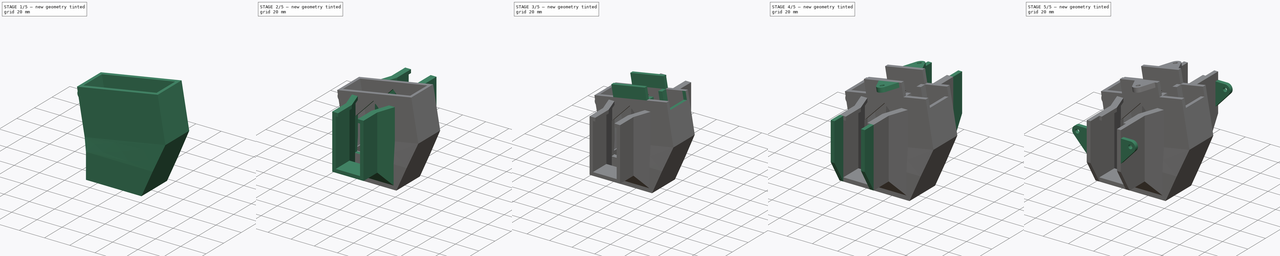
[diagram: build sequence overview — one tinted view per stage of 5, left to right]
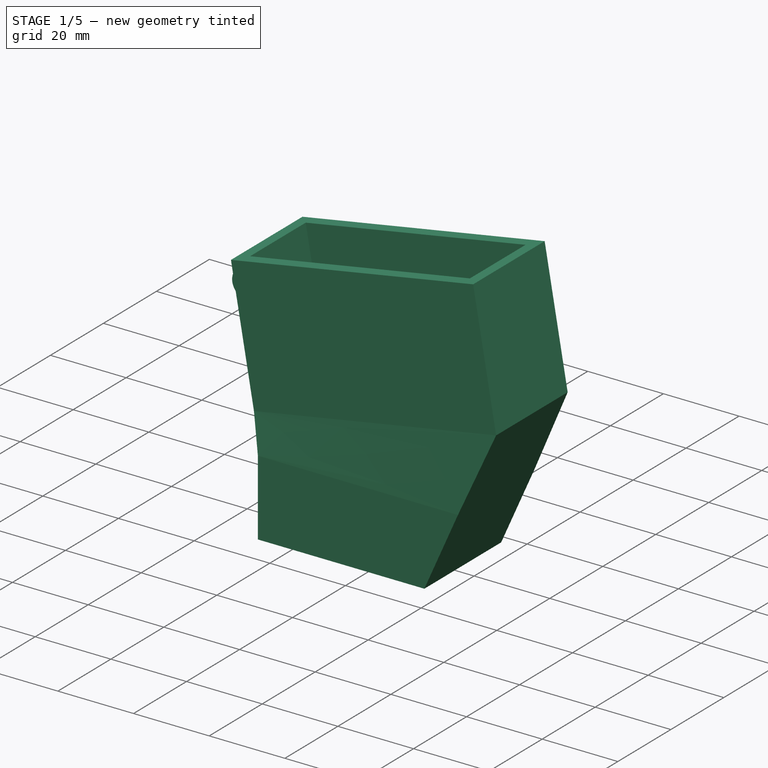
[diagram: stage 1 of 5 — iso view after this stage's code; geometry added in this stage tinted green]
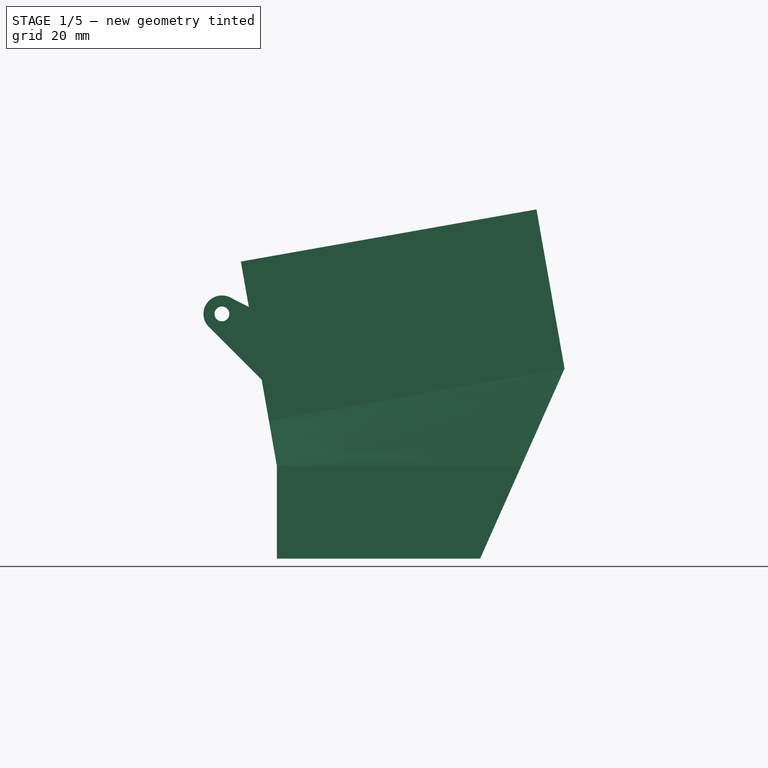
[diagram: stage 1 of 5 — front view after this stage's code; geometry added in this stage tinted green]
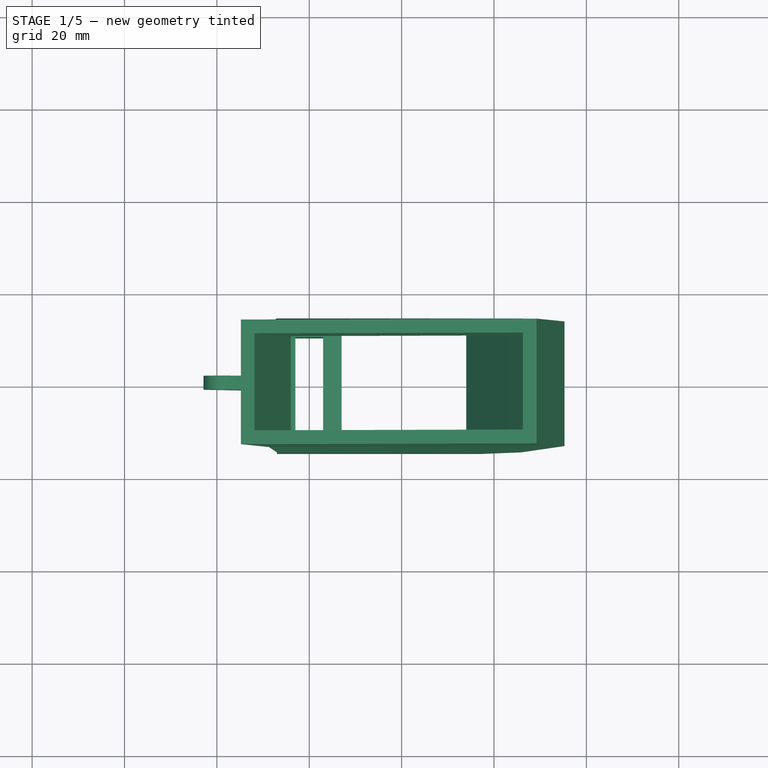
[diagram: stage 1 of 5 — top view after this stage's code; geometry added in this stage tinted green]
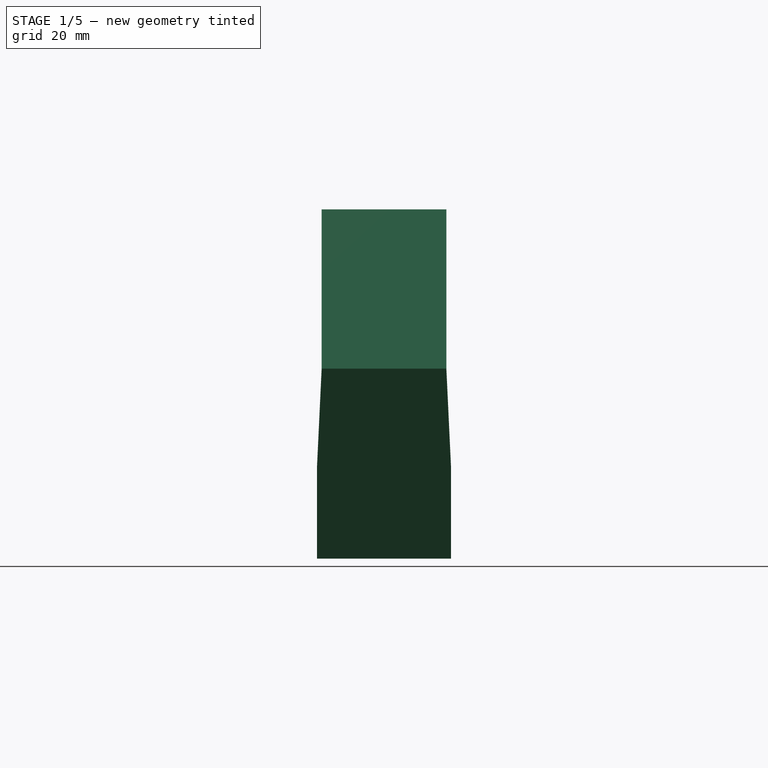
[diagram: stage 1 of 5 — right view after this stage's code; geometry added in this stage tinted green]
FCSTD DOCUMENT  (FreeCAD 0.21R33668 +7 (Git))
Label: 2_Chest_Main
License: All rights reserved
LicenseURL: http://en.wikipedia.org/wiki/All_rights_reserved
objects: Sketcher::SketchObject×19, PartDesign::Pad×6, PartDesign::Plane×4, PartDesign::Pocket×4, PartDesign::AdditiveLoft×3, PartDesign::Mirrored×3, PartDesign::LinearPattern×1, PartDesign::MultiTransform×1, PartDesign::Body×1
note: 55 computed .brp shape members not serialized (recipe doc carries the construction recipe); baked Part::Feature solids carry a one-line shape summary decoded from their .brp

FEATURE [Sketcher::SketchObject] Sketch  label="Master sketch"
  FullyConstrained = true
  MapMode = 5
  Placement = pos=(0,0,0) rot=(1,0,0;1.5708rad)
  Support = -> [XZ_Plane]
  sketch-geometry (9):
    g0: LineSegment StartX=-7 StartY=0 StartZ=0 EndX=37 EndY=0 EndZ=0
    g1: LineSegment StartX=-7 StartY=0 StartZ=0 EndX=-7 EndY=20 EndZ=0
    g2: LineSegment StartX=55.276 StartY=41.1352 StartZ=0 EndX=37 EndY=0 EndZ=0
    g3: LineSegment StartX=-7 StartY=20 StartZ=0 EndX=-14.8142 EndY=64.3163 EndZ=0
    g4: LineSegment StartX=-14.8142 StartY=64.3163 StartZ=0 EndX=49.1983 EndY=75.6035 EndZ=0
    g5: LineSegment StartX=49.1983 StartY=75.6035 StartZ=0 EndX=55.276 EndY=41.1352 EndZ=0
    g6: LineSegment StartX=55.276 StartY=41.1352 StartZ=0 EndX=-8.73648 EndY=29.8481 EndZ=0
    g7: LineSegment StartX=-7 StartY=20 StartZ=0 EndX=45.8858 EndY=20 EndZ=0
    g8: LineSegment StartX=28.5174 StartY=71.9569 StartZ=0 EndX=34.5951 EndY=37.4886 EndZ=0
  constraints (28):
    c: PointOnObject(g0,g-1)
    c: Horizontal(g0)
    c: DistanceX(g0,g0) = 44
    c: DistanceX(g0,g-1) = 7
    c: Coincident(g0,g1)
    c: Vertical(g1)
    c: Coincident(g2,g0)
    c: Coincident(g3,g1)
    c: Coincident(g4,g3)
    c: Distance(g4) = 65
    c: Angle(g-2,g3) = 0.174533
    c: Perpendicular(g3,g4)
    c: Coincident(g5,g4)
    c: Parallel(g5,g3)
    c: Distance(g5) = 35
    c: Coincident(g2,g5)
    c: Distance(g3) = 45
    c: DistanceY(g1,g1) = 20
    c: Coincident(g6,g2)
    c: PointOnObject(g6,g3)
    c: Parallel(g6,g4)
    c: Coincident(g7,g1)
    c: PointOnObject(g7,g2)
    c: Horizontal(g7)
    c: PointOnObject(g8,g4)
    c: PointOnObject(g8,g6)
    c: Parallel(g8,g5)
    c: Distance(g8,g3) = 44
FEATURE [PartDesign::Plane] DatumPlane
  Length = 99.07
  MapMode = 7
  Placement = pos=(-7,-4.4e-15,20) rot=(0,1,0;3.14159rad)
  ResizeMode = 0
  Support = -> [Sketch]
  Width = 128.794
FEATURE [PartDesign::Plane] DatumPlane001
  Length = 130.733
  MapMode = 7
  Placement = pos=(-8.73648,-6.6e-15,29.8481) rot=(0.705758,0.705758,0.061746;3.01826rad)
  ResizeMode = 0
  Support = -> [Sketch]
  Width = 118.426
FEATURE [PartDesign::Plane] DatumPlane002
  Length = 130.733
  MapMode = 7
  Placement = pos=(-14.8142,-1.43e-14,64.3163) rot=(0.705758,0.705758,0.061746;3.01826rad)
  ResizeMode = 0
  Support = -> [Sketch]
  Width = 118.426
FEATURE [Sketcher::SketchObject] Sketch001
  ExternalGeometry = -> [Sketch]
  FullyConstrained = true
  MapMode = 5
  Support = -> [XY_Plane]
  sketch-geometry (12):
    g0: LineSegment StartX=-7 StartY=-14.5 StartZ=0 EndX=37 EndY=-14.5 EndZ=0
    g1: LineSegment StartX=37 StartY=-14.5 StartZ=0 EndX=37 EndY=14.5 EndZ=0
    g2: LineSegment StartX=37 StartY=14.5 StartZ=0 EndX=-7 EndY=14.5 EndZ=0
    g3: LineSegment StartX=-7 StartY=14.5 StartZ=0 EndX=-7 EndY=-14.5 EndZ=0
    g4: LineSegment StartX=-3 StartY=-10.5 StartZ=0 EndX=3 EndY=-10.5 EndZ=0
    g5: LineSegment StartX=3 StartY=-10.5 StartZ=0 EndX=3 EndY=10.5 EndZ=0
    g6: LineSegment StartX=3 StartY=10.5 StartZ=0 EndX=-3 EndY=10.5 EndZ=0
    g7: LineSegment StartX=-3 StartY=10.5 StartZ=0 EndX=-3 EndY=-10.5 EndZ=0
    g8: LineSegment StartX=7 StartY=11.5 StartZ=0 EndX=34 EndY=11.5 EndZ=0
    g9: LineSegment StartX=34 StartY=11.5 StartZ=0 EndX=34 EndY=-11.5 EndZ=0
    g10: LineSegment StartX=34 StartY=-11.5 StartZ=0 EndX=7 EndY=-11.5 EndZ=0
    g11: LineSegment StartX=7 StartY=-11.5 StartZ=0 EndX=7 EndY=11.5 EndZ=0
  constraints (33):
    c: Coincident(g0,g1)
    c: Coincident(g1,g2)
    c: Coincident(g2,g3)
    c: Coincident(g3,g0)
    c: Vertical(g1)
    c: Symmetric(g2,g0,g-1)
    c: PointOnObject(g-3,g3)
    c: PointOnObject(g-3,g1)
    c: Coincident(g4,g5)
    c: Coincident(g5,g6)
    c: Coincident(g6,g7)
    c: Coincident(g7,g4)
    c: Horizontal(g4)
    c: Horizontal(g6)
    c: Vertical(g5)
    c: Vertical(g7)
    c: Coincident(g8,g9)
    c: Coincident(g9,g10)
    c: Coincident(g10,g11)
    c: Coincident(g11,g8)
    c: Horizontal(g8)
    c: Horizontal(g10)
    c: Vertical(g9)
    c: Symmetric(g5,g4,g-1)
    c: Symmetric(g10,g8,g-3)
    c: DistanceX(g2,g6) = 4
    c: DistanceY(g6,g2) = 4
    c: DistanceY(g7,g7) = 21
    c: DistanceX(g8,g1) = 3
    c: DistanceX(g5,g8) = 4
    c: DistanceY(g8,g1) = 3
    c: Horizontal(g2)
    c: Horizontal(g0)
FEATURE [Sketcher::SketchObject] Sketch002
  ExternalGeometry = -> [Sketch]
  FullyConstrained = true
  MapMode = 5
  Placement = pos=(-7,-4.4e-15,20) rot=(0,1,0;3.14159rad)
  Support = -> [DatumPlane]
  sketch-geometry (12):
    g0: LineSegment StartX=-52.8858 StartY=14.5 StartZ=0 EndX=0 EndY=14.5 EndZ=0
    g1: LineSegment StartX=0 StartY=14.5 StartZ=0 EndX=0 EndY=-14.5 EndZ=0
    g2: LineSegment StartX=0 StartY=-14.5 StartZ=0 EndX=-52.8858 EndY=-14.5 EndZ=0
    g3: LineSegment StartX=-52.8858 StartY=-14.5 StartZ=0 EndX=-52.8858 EndY=14.5 EndZ=0
    g4: LineSegment StartX=-10 StartY=10.5 StartZ=0 EndX=-4 EndY=10.5 EndZ=0
    g5: LineSegment StartX=-4 StartY=10.5 StartZ=0 EndX=-4 EndY=-10.5 EndZ=0
    g6: LineSegment StartX=-4 StartY=-10.5 StartZ=0 EndX=-10 EndY=-10.5 EndZ=0
    g7: LineSegment StartX=-10 StartY=-10.5 StartZ=0 EndX=-10 EndY=10.5 EndZ=0
    g8: LineSegment StartX=-49.8858 StartY=-11.5 StartZ=0 EndX=-14 EndY=-11.5 EndZ=0
    g9: LineSegment StartX=-14 StartY=-11.5 StartZ=0 EndX=-14 EndY=11.5 EndZ=0
    g10: LineSegment StartX=-14 StartY=11.5 StartZ=0 EndX=-49.8858 EndY=11.5 EndZ=0
    g11: LineSegment StartX=-49.8858 StartY=11.5 StartZ=0 EndX=-49.8858 EndY=-11.5 EndZ=0
  constraints (33):
    c: Coincident(g0,g1)
    c: Coincident(g1,g2)
    c: Coincident(g2,g3)
    c: Coincident(g3,g0)
    c: Horizontal(g0)
    c: Horizontal(g2)
    c: Vertical(g1)
    c: Vertical(g3)
    c: PointOnObject(g-3,g1)
    c: Symmetric(g0,g2,g-3)
    c: Coincident(g4,g5)
    c: Coincident(g5,g6)
    c: Coincident(g6,g7)
    c: Coincident(g7,g4)
    c: Horizontal(g4)
    c: Horizontal(g6)
    c: Vertical(g5)
    c: Symmetric(g4,g6,g-3)
    c: DistanceX(g4,g0) = 4
    c: DistanceX(g4,g4) = 6
    c: DistanceY(g4,g0) = 4
    c: DistanceY(g5,g5) = 21
    c: Coincident(g8,g9)
    c: Coincident(g9,g10)
    c: Coincident(g10,g11)
    c: Coincident(g11,g8)
    c: Horizontal(g8)
    c: Horizontal(g10)
    c: Vertical(g9)
    c: Symmetric(g10,g8,g-3)
    c: DistanceX(g2,g8) = 3
    c: DistanceY(g2,g8) = 3
    c: DistanceX(g8,g6) = 4
FEATURE [PartDesign::AdditiveLoft] AdditiveLoft
  Closed = false
  Profile = -> Sketch001
  Ruled = true
  Sections = -> [Sketch002]
FEATURE [Sketcher::SketchObject] Sketch003
  ExternalGeometry = -> [AdditiveLoft]
  FullyConstrained = true
  MapMode = 5
  Placement = pos=(-7,-4.4e-15,20) rot=(0,1,0;3.14159rad)
  Support = -> [DatumPlane]
  sketch-geometry (8):
    g0: LineSegment StartX=-52.8858 StartY=14.5 StartZ=0 EndX=0 EndY=14.5 EndZ=0
    g1: LineSegment StartX=0 StartY=14.5 StartZ=0 EndX=0 EndY=-14.5 EndZ=0
    g2: LineSegment StartX=0 StartY=-14.5 StartZ=0 EndX=-52.8858 EndY=-14.5 EndZ=0
    g3: LineSegment StartX=-52.8858 StartY=-14.5 StartZ=0 EndX=-52.8858 EndY=14.5 EndZ=0
    g4: LineSegment StartX=-49.8858 StartY=-11.5 StartZ=0 EndX=-3 EndY=-11.5 EndZ=0
    g5: LineSegment StartX=-3 StartY=-11.5 StartZ=0 EndX=-3 EndY=11.5 EndZ=0
    g6: LineSegment StartX=-3 StartY=11.5 StartZ=0 EndX=-49.8858 EndY=11.5 EndZ=0
    g7: LineSegment StartX=-49.8858 StartY=11.5 StartZ=0 EndX=-49.8858 EndY=-11.5 EndZ=0
  constraints (21):
    c: Coincident(g0,g1)
    c: Coincident(g1,g2)
    c: Coincident(g2,g3)
    c: Coincident(g3,g0)
    c: Horizontal(g0)
    c: Horizontal(g2)
    c: Vertical(g1)
    c: PointOnObject(g-1,g1)
    c: Coincident(g0,g-3)
    c: Coincident(g2,g-3)
    c: Coincident(g4,g5)
    c: Coincident(g5,g6)
    c: Coincident(g6,g7)
    c: Coincident(g7,g4)
    c: Horizontal(g4)
    c: Horizontal(g6)
    c: Vertical(g5)
    c: DistanceX(g0,g6) = 3
    c: DistanceY(g6,g0) = 3
    c: DistanceX(g5,g0) = 3
    c: Symmetric(g6,g4,g-1)
FEATURE [Sketcher::SketchObject] Sketch004
  ExternalGeometry = -> [Sketch]
  FullyConstrained = true
  MapMode = 5
  Placement = pos=(-8.73648,-6.6e-15,29.8481) rot=(0.705758,0.705758,0.061746;3.01826rad)
  Support = -> [DatumPlane001]
  sketch-geometry (8):
    g0: LineSegment StartX=-13.5 StartY=0 StartZ=0 EndX=13.5 EndY=0 EndZ=0
    g1: LineSegment StartX=13.5 StartY=0 StartZ=0 EndX=13.5 EndY=65 EndZ=0
    g2: LineSegment StartX=13.5 StartY=65 StartZ=0 EndX=-13.5 EndY=65 EndZ=0
    g3: LineSegment StartX=-13.5 StartY=65 StartZ=0 EndX=-13.5 EndY=0 EndZ=0
    g4: LineSegment StartX=-10.5 StartY=3 StartZ=0 EndX=10.5 EndY=3 EndZ=0
    g5: LineSegment StartX=10.5 StartY=3 StartZ=0 EndX=10.5 EndY=62 EndZ=0
    g6: LineSegment StartX=10.5 StartY=62 StartZ=0 EndX=-10.5 EndY=62 EndZ=0
    g7: LineSegment StartX=-10.5 StartY=62 StartZ=0 EndX=-10.5 EndY=3 EndZ=0
  constraints (22):
    c: Coincident(g0,g1)
    c: Coincident(g1,g2)
    c: Coincident(g2,g3)
    c: Coincident(g3,g0)
    c: Horizontal(g0)
    c: Horizontal(g2)
    c: Vertical(g1)
    c: Vertical(g3)
    c: Symmetric(g1,g2,g-3)
    c: PointOnObject(g-3,g0)
    c: Coincident(g4,g5)
    c: Coincident(g5,g6)
    c: Coincident(g6,g7)
    c: Coincident(g7,g4)
    c: Horizontal(g4)
    c: Vertical(g5)
    c: Vertical(g7)
    c: Symmetric(g5,g6,g-2)
    c: DistanceY(g5,g1) = 3
    c: DistanceX(g5,g1) = 3
    c: DistanceY(g0,g4) = 3
    c: DistanceX(g4,g4) = 21
FEATURE [Sketcher::SketchObject] Sketch005
  ExternalGeometry = -> [Sketch]
  FullyConstrained = true
  MapMode = 5
  Placement = pos=(-14.8142,-1.43e-14,64.3163) rot=(0.705758,0.705758,0.061746;3.01826rad)
  Support = -> [DatumPlane002]
  sketch-geometry (8):
    g0: LineSegment StartX=-13.5 StartY=0 StartZ=0 EndX=13.5 EndY=0 EndZ=0
    g1: LineSegment StartX=13.5 StartY=0 StartZ=0 EndX=13.5 EndY=65 EndZ=0
    g2: LineSegment StartX=13.5 StartY=65 StartZ=0 EndX=-13.5 EndY=65 EndZ=0
    g3: LineSegment StartX=-13.5 StartY=65 StartZ=0 EndX=-13.5 EndY=0 EndZ=0
    g4: LineSegment StartX=-10.5 StartY=3 StartZ=0 EndX=10.5 EndY=3 EndZ=0
    g5: LineSegment StartX=10.5 StartY=3 StartZ=0 EndX=10.5 EndY=62 EndZ=0
    g6: LineSegment StartX=10.5 StartY=62 StartZ=0 EndX=-10.5 EndY=62 EndZ=0
    g7: LineSegment StartX=-10.5 StartY=62 StartZ=0 EndX=-10.5 EndY=3 EndZ=0
  constraints (22):
    c: Coincident(g0,g1)
    c: Coincident(g1,g2)
    c: Coincident(g2,g3)
    c: Coincident(g3,g0)
    c: Horizontal(g0)
    c: Horizontal(g2)
    c: Vertical(g1)
    c: Vertical(g3)
    c: Symmetric(g1,g2,g-3)
    c: PointOnObject(g-3,g0)
    c: Coincident(g4,g5)
    c: Coincident(g5,g6)
    c: Coincident(g6,g7)
    c: Coincident(g7,g4)
    c: Horizontal(g4)
    c: Vertical(g5)
    c: Vertical(g7)
    c: Symmetric(g5,g6,g-3)
    c: DistanceY(g5,g1) = 3
    c: DistanceX(g5,g1) = 3
    c: DistanceY(g0,g4) = 3
    c: DistanceX(g4,g4) = 21
FEATURE [PartDesign::AdditiveLoft] AdditiveLoft001
  BaseFeature = -> AdditiveLoft
  Closed = false
  Profile = -> Sketch003
  Ruled = true
  Sections = -> [Sketch004,Sketch005]
FEATURE [Sketcher::SketchObject] Sketch006  label="Camera bracket sketch"
  ExternalGeometry = -> [Sketch]
  FullyConstrained = true
  MapMode = 5
  Placement = pos=(0,0,0) rot=(1,0,0;1.5708rad)
  Support = -> [XZ_Plane]
  sketch-geometry (6):
    g0: LineSegment StartX=-13.0777 StartY=54.4683 StartZ=0 EndX=-10.2993 EndY=38.7113 EndZ=0
    g1: LineSegment StartX=-10.2993 StartY=38.7113 StartZ=0 EndX=-21.7355 EndY=50.1476 EndZ=0
    g2: LineSegment StartX=-13.0777 StartY=54.4683 StartZ=0 EndX=-17.0723 EndY=56.5304 EndZ=0
    g3: ArcOfCircle CenterX=-18.9071 CenterY=52.976 CenterZ=0 NormalX=0 NormalY=0 NormalZ=1 AngleXU=0 Radius=4 StartAngle=1.09426 EndAngle=3.92699
    g4: LineSegment StartX=-18.9071 StartY=52.976 StartZ=0 EndX=-12.9983 EndY=54.0179 EndZ=0
    g5: Circle CenterX=-18.9071 CenterY=52.976 CenterZ=0 NormalX=0 NormalY=0 NormalZ=1 AngleXU=0 Radius=1.6
  constraints (16):
    c: Tangent(g3,g2) = -1.5708
    c: Tangent(g3,g1) = 1.5708
    c: Radius(g3) = 4
    c: PointOnObject(g1,g-3)
    c: Distance(g0) = 16
    c: Angle(g1,g-2) = 2.35619
    c: PointOnObject(g4,g0)
    c: Perpendicular(g0,g4)
    c: Distance(g4) = 6
    c: Coincident(g0,g1)
    c: Coincident(g0,g2)
    c: PointOnObject(g0,g-3)
    c: Coincident(g3,g4)
    c: Distance(g0,g-3) = 10
    c: Diameter(g5) = 3.2
    c: Coincident(g5,g3)
FEATURE [PartDesign::Pad] Pad  label="Camera bracket"
  BaseFeature = -> AdditiveLoft001
  Direction = (0,-1,-2e-16)
  Length = 3
  Length2 = 10
  Midplane = true
  Profile = -> Sketch006
  ReferenceAxis = -> Sketch006 [N_Axis]
  Type = 0
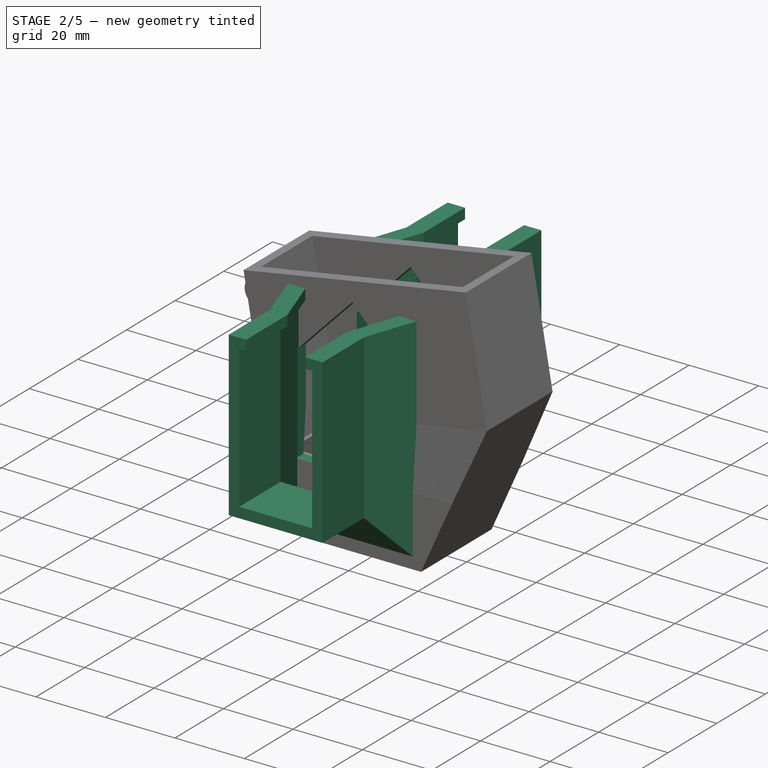
[diagram: stage 2 of 5 — iso view after this stage's code; geometry added in this stage tinted green]
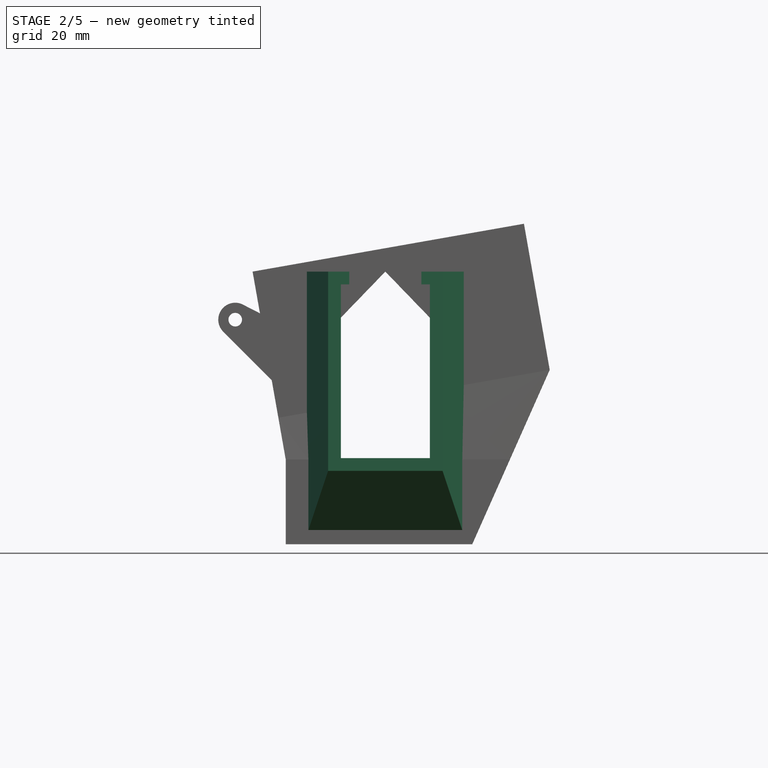
[diagram: stage 2 of 5 — front view after this stage's code; geometry added in this stage tinted green]
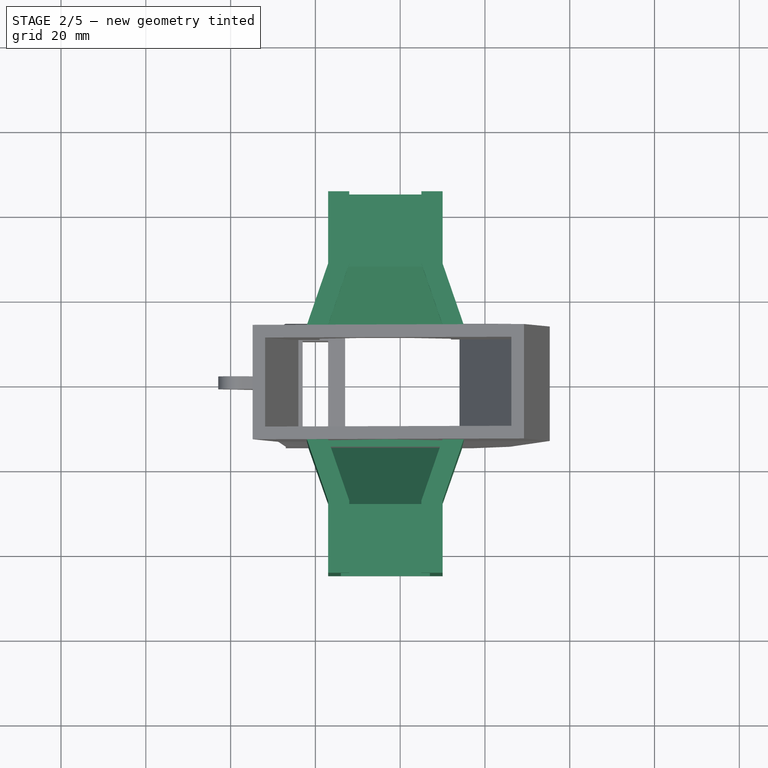
[diagram: stage 2 of 5 — top view after this stage's code; geometry added in this stage tinted green]
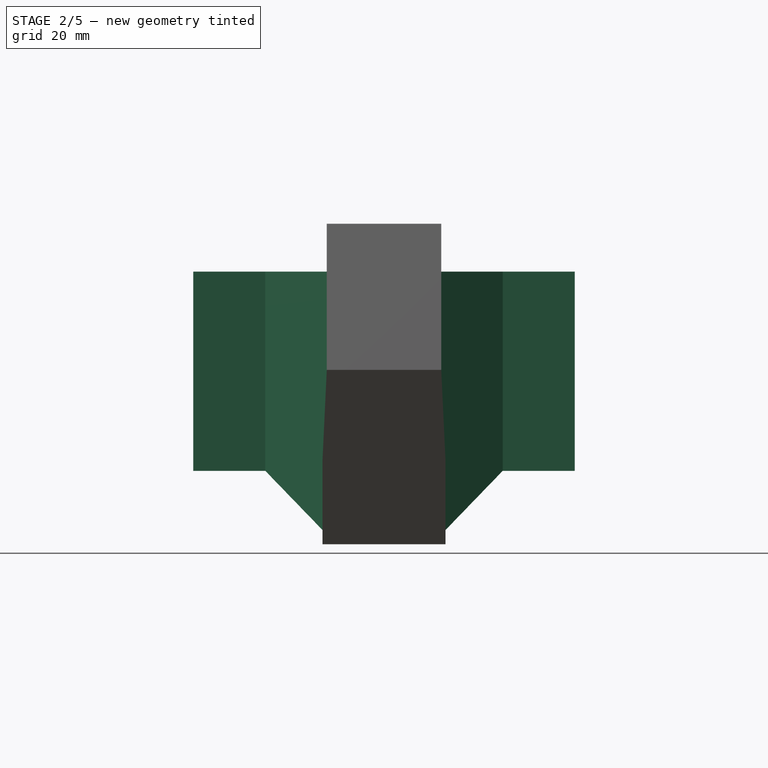
[diagram: stage 2 of 5 — right view after this stage's code; geometry added in this stage tinted green]
FEATURE [Sketcher::SketchObject] Sketch007
  AttachmentOffset = pos=(0,0,13.5) rot=(0,0,1;0rad)
  ExternalGeometry = -> [Sketch]
  FullyConstrained = true
  MapMode = 5
  Placement = pos=(0,-13.5,-3e-15) rot=(1,0,0;1.5708rad)
  Support = -> [XZ_Plane]
  sketch-geometry (12):
    g0: LineSegment StartX=35 StartY=64.3163 StartZ=0 EndX=35 EndY=2.31635 EndZ=0
    g1: LineSegment StartX=35 StartY=2.31635 StartZ=0 EndX=-2 EndY=2.31635 EndZ=0
    g2: LineSegment StartX=-2 StartY=2.31635 StartZ=0 EndX=-2 EndY=64.3163 EndZ=0
    g3: LineSegment StartX=32 StartY=61.3163 StartZ=0 EndX=32 EndY=5.31635 EndZ=0
    g4: LineSegment StartX=32 StartY=5.31635 StartZ=0 EndX=1 EndY=5.31635 EndZ=0
    g5: LineSegment StartX=1 StartY=5.31635 StartZ=0 EndX=1 EndY=61.3163 EndZ=0
    g6: LineSegment StartX=-2 StartY=64.3163 StartZ=0 EndX=3 EndY=64.3163 EndZ=0
    g7: LineSegment StartX=3 StartY=64.3163 StartZ=0 EndX=3 EndY=61.3163 EndZ=0
    g8: LineSegment StartX=3 StartY=61.3163 StartZ=0 EndX=1 EndY=61.3163 EndZ=0
    g9: LineSegment StartX=35 StartY=64.3163 StartZ=0 EndX=30 EndY=64.3163 EndZ=0
    g10: LineSegment StartX=30 StartY=64.3163 StartZ=0 EndX=30 EndY=61.3163 EndZ=0
    g11: LineSegment StartX=30 StartY=61.3163 StartZ=0 EndX=32 EndY=61.3163 EndZ=0
  constraints (36):
    c: Coincident(g0,g1)
    c: Coincident(g1,g2)
    c: Horizontal(g1)
    c: Vertical(g0)
    c: Vertical(g2)
    c: Horizontal(g-3,g2)
    c: Coincident(g3,g4)
    c: Coincident(g4,g5)
    c: Horizontal(g4)
    c: Vertical(g3)
    c: Vertical(g5)
    c: DistanceY(g5,g2) = 3
    c: DistanceX(g2,g5) = 3
    c: DistanceY(g0,g3) = 3
    c: DistanceX(g3,g0) = 3
    c: DistanceX(g5,g3) = 31
    c: DistanceX(g-3,g1) = 5
    c: DistanceY(g5,g5) = 56
    c: Coincident(g2,g6)
    c: Horizontal(g6)
    c: Coincident(g6,g7)
    c: Vertical(g7)
    c: Coincident(g7,g8)
    c: Coincident(g8,g5)
    c: Coincident(g0,g9)
    c: Coincident(g9,g10)
    c: Coincident(g10,g11)
    c: Coincident(g11,g3)
    c: DistanceX(g6,g6) = 5
    c: DistanceY(g7,g7) = 3
    c: Vertical(g10)
    c: Horizontal(g11)
    c: Horizontal(g10,g7)
    c: Horizontal(g9,g6)
    c: DistanceX(g9,g9) = 5
    c: Horizontal(g9)
FEATURE [Sketcher::SketchObject] Sketch008
  AttachmentOffset = pos=(0,0,28) rot=(0,0,1;0rad)
  ExternalGeometry = -> [Sketch007]
  FullyConstrained = true
  MapMode = 5
  Placement = pos=(0,-28,-6.2e-15) rot=(1,0,0;1.5708rad)
  Support = -> [XZ_Plane]
  sketch-geometry (12):
    g0: LineSegment StartX=30 StartY=64.3163 StartZ=0 EndX=30 EndY=17.3163 EndZ=0
    g1: LineSegment StartX=30 StartY=17.3163 StartZ=0 EndX=3 EndY=17.3163 EndZ=0
    g2: LineSegment StartX=3 StartY=17.3163 StartZ=0 EndX=3 EndY=64.3163 EndZ=0
    g3: LineSegment StartX=27 StartY=61.3163 StartZ=0 EndX=27 EndY=20.3163 EndZ=0
    g4: LineSegment StartX=27 StartY=20.3163 StartZ=0 EndX=6 EndY=20.3163 EndZ=0
    g5: LineSegment StartX=6 StartY=20.3163 StartZ=0 EndX=6 EndY=61.3163 EndZ=0
    g6: LineSegment StartX=3 StartY=64.3163 StartZ=0 EndX=8 EndY=64.3163 EndZ=0
    g7: LineSegment StartX=8 StartY=64.3163 StartZ=0 EndX=8 EndY=61.3163 EndZ=0
    g8: LineSegment StartX=6 StartY=61.3163 StartZ=0 EndX=8 EndY=61.3163 EndZ=0
    g9: LineSegment StartX=30 StartY=64.3163 StartZ=0 EndX=25 EndY=64.3163 EndZ=0
    g10: LineSegment StartX=25 StartY=64.3163 StartZ=0 EndX=25 EndY=61.3163 EndZ=0
    g11: LineSegment StartX=25 StartY=61.3163 StartZ=0 EndX=27 EndY=61.3163 EndZ=0
  constraints (37):
    c: Coincident(g0,g1)
    c: Coincident(g1,g2)
    c: Horizontal(g1)
    c: Vertical(g0)
    c: Vertical(g2)
    c: Coincident(g3,g4)
    c: Coincident(g4,g5)
    c: Horizontal(g4)
    c: Vertical(g3)
    c: Vertical(g5)
    c: DistanceX(g2,g5) = 3
    c: DistanceY(g0,g3) = 3
    c: DistanceX(g3,g0) = 3
    c: DistanceY(g5,g2) = 3
    c: DistanceX(g5,g3) = 21
    c: DistanceY(g5,g5) = 41
    c: DistanceY(g-4,g1) = -47
    c: Coincident(g2,g6)
    c: Horizontal(g6)
    c: Coincident(g6,g7)
    c: Vertical(g7)
    c: Coincident(g5,g8)
    c: Coincident(g8,g7)
    c: Horizontal(g8)
    c: Coincident(g0,g9)
    c: Coincident(g9,g10)
    c: Vertical(g10)
    c: Coincident(g10,g11)
    c: Horizontal(g2,g-4)
    c: Horizontal(g9)
    c: Horizontal(g9,g6)
    c: Horizontal(g7,g10)
    c: Horizontal(g11)
    c: Coincident(g3,g11)
    c: DistanceX(g-4,g2) = 5
    c: DistanceX(g6,g6) = 5
    c: DistanceX(g9,g9) = 5
FEATURE [Sketcher::SketchObject] Sketch009
  AttachmentOffset = pos=(0,0,45) rot=(0,0,1;0rad)
  ExternalGeometry = -> [Sketch008]
  FullyConstrained = true
  MapMode = 5
  Placement = pos=(0,-45,-1e-14) rot=(1,0,0;1.5708rad)
  Support = -> [XZ_Plane]
  sketch-geometry (12):
    g0: LineSegment StartX=8 StartY=64.3163 StartZ=0 EndX=3 EndY=64.3163 EndZ=0
    g1: LineSegment StartX=3 StartY=64.3163 StartZ=0 EndX=3 EndY=17.3163 EndZ=0
    g2: LineSegment StartX=3 StartY=17.3163 StartZ=0 EndX=30 EndY=17.3163 EndZ=0
    g3: LineSegment StartX=30 StartY=17.3163 StartZ=0 EndX=30 EndY=64.3163 EndZ=0
    g4: LineSegment StartX=30 StartY=64.3163 StartZ=0 EndX=25 EndY=64.3163 EndZ=0
    g5: LineSegment StartX=25 StartY=64.3163 StartZ=0 EndX=25 EndY=61.3163 EndZ=0
    g6: LineSegment StartX=25 StartY=61.3163 StartZ=0 EndX=27 EndY=61.3163 EndZ=0
    g7: LineSegment StartX=27 StartY=61.3163 StartZ=0 EndX=27 EndY=20.3163 EndZ=0
    g8: LineSegment StartX=27 StartY=20.3163 StartZ=0 EndX=6 EndY=20.3163 EndZ=0
    g9: LineSegment StartX=6 StartY=20.3163 StartZ=0 EndX=6 EndY=61.3163 EndZ=0
    g10: LineSegment StartX=6 StartY=61.3163 StartZ=0 EndX=8 EndY=61.3163 EndZ=0
    g11: LineSegment StartX=8 StartY=61.3163 StartZ=0 EndX=8 EndY=64.3163 EndZ=0
  constraints (28):
    c: Coincident(g0,g1)
    c: Coincident(g1,g2)
    c: Horizontal(g2)
    c: Coincident(g2,g3)
    c: Vertical(g3)
    c: Coincident(g3,g4)
    c: Coincident(g4,g5)
    c: Vertical(g5)
    c: Coincident(g5,g6)
    c: Horizontal(g6)
    c: Coincident(g6,g7)
    c: Vertical(g7)
    c: Coincident(g7,g8)
    c: Horizontal(g8)
    c: Coincident(g8,g9)
    c: Coincident(g9,g10)
    c: Horizontal(g10)
    c: Coincident(g10,g11)
    c: Coincident(g11,g0)
    c: Coincident(g0,g-4)
    c: Coincident(g8,g-7)
    c: Coincident(g9,g-7)
    c: Coincident(g0,g-4)
    c: Vertical(g11)
    c: Coincident(g1,g-3)
    c: Coincident(g4,g-5)
    c: Coincident(g6,g-8)
    c: Coincident(g3,g-6)
FEATURE [PartDesign::AdditiveLoft] AdditiveLoft002
  BaseFeature = -> Pad
  Closed = false
  Profile = -> Sketch007
  Ruled = true
  Sections = -> [Sketch008,Sketch009]
FEATURE [PartDesign::Mirrored] Mirrored001
  BaseFeature = -> AdditiveLoft002
  MirrorPlane = -> XZ_Plane
  Originals = -> [AdditiveLoft002]
FEATURE [Sketcher::SketchObject] Sketch010
  ExternalGeometry = -> [Sketch007]
  FullyConstrained = true
  MapMode = 5
  Placement = pos=(0,0,0) rot=(1,0,0;1.5708rad)
  Support = -> [XZ_Plane]
  sketch-geometry (5):
    g0: LineSegment StartX=1 StartY=20 StartZ=0 EndX=32 EndY=20 EndZ=0
    g1: LineSegment StartX=32 StartY=20 StartZ=0 EndX=32 EndY=48.2656 EndZ=0
    g2: LineSegment StartX=32 StartY=48.2656 StartZ=0 EndX=16.5 EndY=64.3163 EndZ=0
    g3: LineSegment StartX=16.5 StartY=64.3163 StartZ=0 EndX=1 EndY=48.2656 EndZ=0
    g4: LineSegment StartX=1 StartY=48.2656 StartZ=0 EndX=1 EndY=20 EndZ=0
  constraints (14):
    c: Horizontal(g0)
    c: Coincident(g0,g1)
    c: Vertical(g1)
    c: Coincident(g1,g2)
    c: Coincident(g2,g3)
    c: Coincident(g3,g4)
    c: Coincident(g4,g0)
    c: PointOnObject(g0,g-4)
    c: Vertical(g4)
    c: Symmetric(g-3,g-6,g2)
    c: PointOnObject(g1,g-5)
    c: Horizontal(g1,g3)
    c: Angle(g-2,g3) = 2.37365
    c: DistanceY(g-1,g0) = 20
FEATURE [PartDesign::Pocket] Pocket
  BaseFeature = -> Mirrored001
  Direction = (0,1,2e-16)
  Length = 29
  Length2 = 5
  Midplane = true
  Profile = -> Sketch010
  ReferenceAxis = -> Sketch010 [N_Axis]
  Type = 0
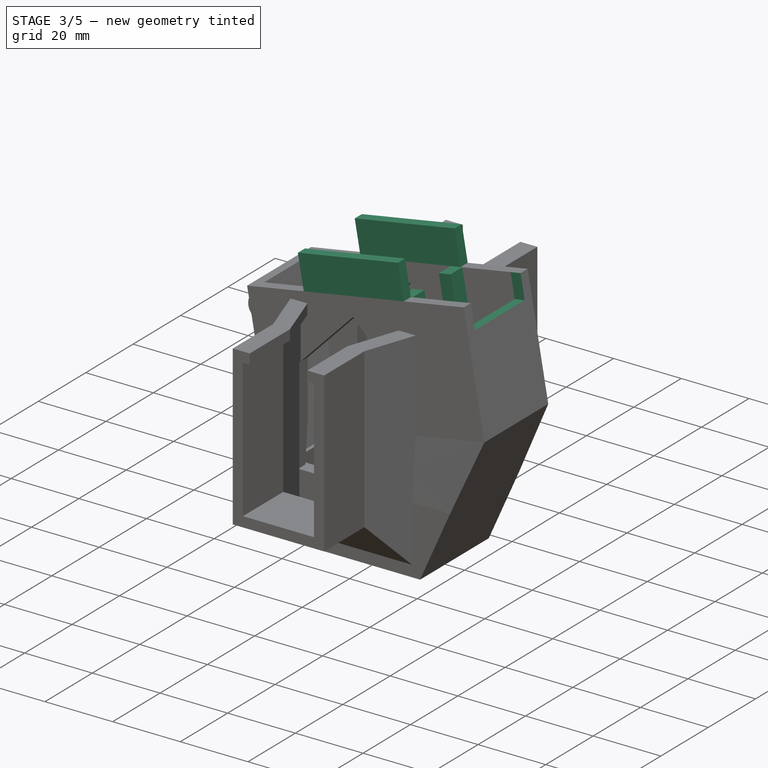
[diagram: stage 3 of 5 — iso view after this stage's code; geometry added in this stage tinted green]
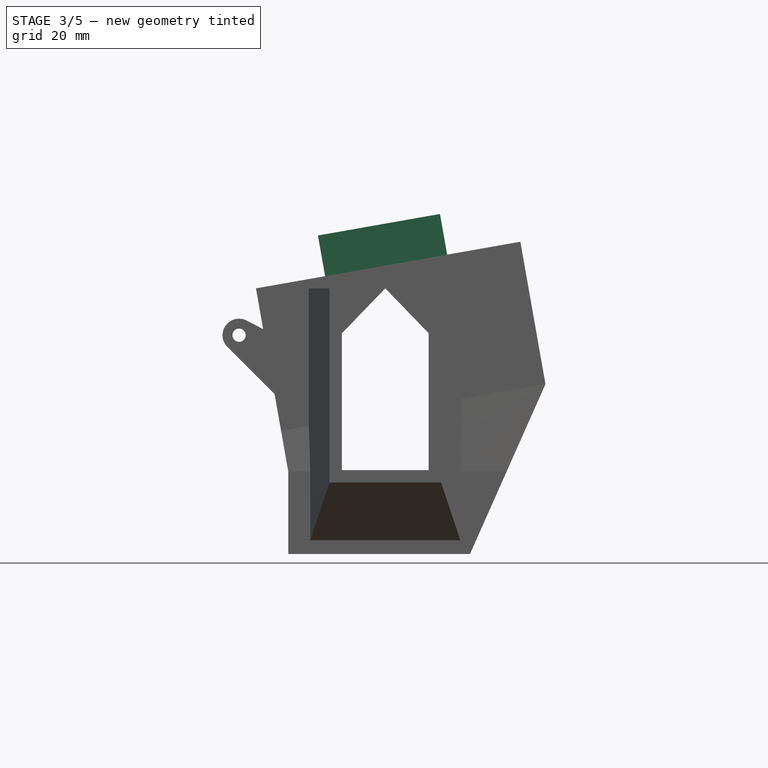
[diagram: stage 3 of 5 — front view after this stage's code; geometry added in this stage tinted green]
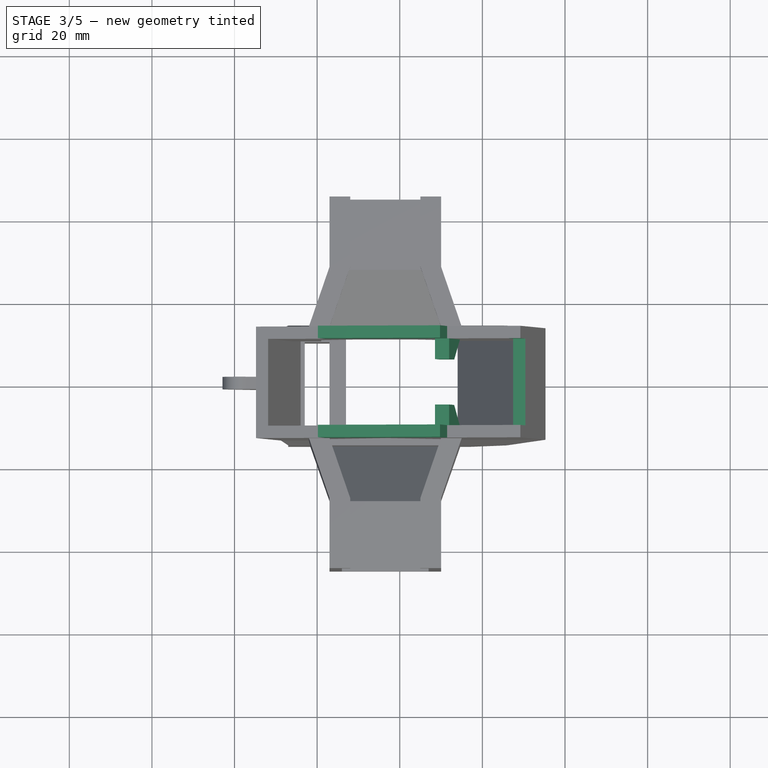
[diagram: stage 3 of 5 — top view after this stage's code; geometry added in this stage tinted green]
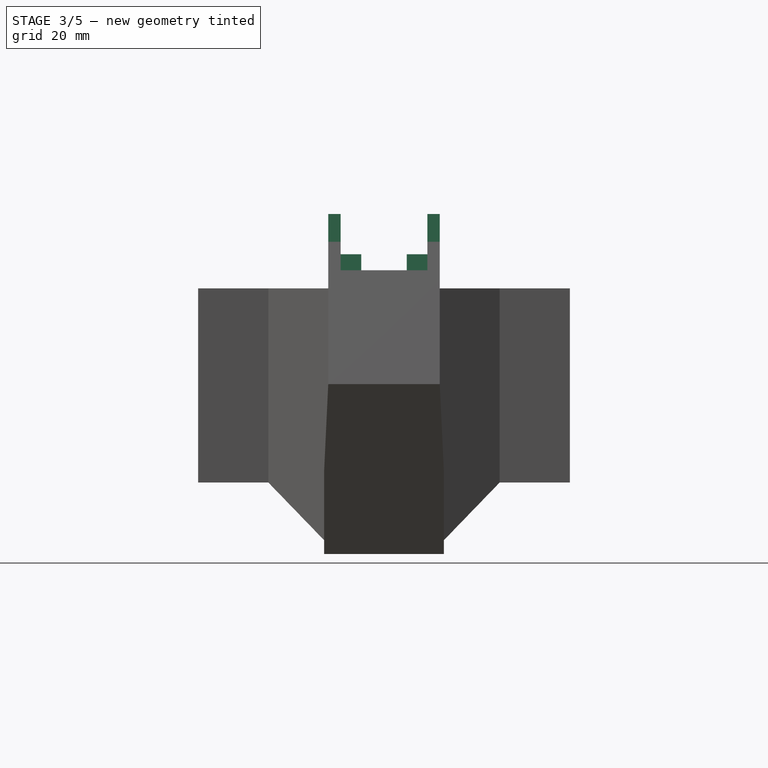
[diagram: stage 3 of 5 — right view after this stage's code; geometry added in this stage tinted green]
FEATURE [Sketcher::SketchObject] Sketch011
  FullyConstrained = true
  MapMode = 5
  Placement = pos=(0,0,0) rot=(0.57735,0.57735,0.57735;2.0944rad)
  Support = -> [YZ_Plane]
  sketch-geometry (2):
    g0: Circle CenterX=0 CenterY=3 CenterZ=0 NormalX=0 NormalY=0 NormalZ=1 AngleXU=0 Radius=1.6
    g1: Circle CenterX=0 CenterY=11 CenterZ=0 NormalX=0 NormalY=0 NormalZ=1 AngleXU=0 Radius=1.6
  constraints (6):
    c: Equal(g1,g0)
    c: Diameter(g1) = 3.2
    c: DistanceY(g-1,g0) = 3
    c: PointOnObject(g0,g-2)
    c: DistanceY(g0,g1) = 8
    c: PointOnObject(g1,g-2)
FEATURE [PartDesign::Pocket] Pocket001
  BaseFeature = -> Pocket
  Direction = (-1,2e-16,-3e-16)
  Length = 20
  Length2 = 5
  Midplane = true
  Profile = -> Sketch011
  ReferenceAxis = -> Sketch011 [N_Axis]
  Type = 0
FEATURE [PartDesign::Plane] DatumPlane003
  Length = 132.943
  MapMode = 7
  Placement = pos=(28.5174,-1.6e-14,71.9569) rot=(-0.60812,0.60812,0.510274;4.08526rad)
  ResizeMode = 0
  Support = -> [Sketch]
  Width = 142.578
FEATURE [Sketcher::SketchObject] Sketch012
  FullyConstrained = true
  MapMode = 5
  Placement = pos=(28.5174,-1.6e-14,71.9569) rot=(0.60812,-0.60812,-0.510274;2.19793rad)
  Support = -> [DatumPlane003]
  sketch-geometry (8):
    g0: LineSegment StartX=-10.5 StartY=0 StartZ=0 EndX=-10.5 EndY=-15 EndZ=0
    g1: LineSegment StartX=-10.5 StartY=-15 StartZ=0 EndX=-5.5 EndY=-7 EndZ=0
    g2: LineSegment StartX=-5.5 StartY=-7 StartZ=0 EndX=-5.5 EndY=0 EndZ=0
    g3: LineSegment StartX=-5.5 StartY=0 StartZ=0 EndX=-10.5 EndY=0 EndZ=0
    g4: LineSegment StartX=5.5 StartY=0 StartZ=0 EndX=10.5 EndY=0 EndZ=0
    g5: LineSegment StartX=10.5 StartY=0 StartZ=0 EndX=10.5 EndY=-15 EndZ=0
    g6: LineSegment StartX=10.5 StartY=-15 StartZ=0 EndX=5.5 EndY=-7 EndZ=0
    g7: LineSegment StartX=5.5 StartY=-7 StartZ=0 EndX=5.5 EndY=0 EndZ=0
  constraints (23):
    c: Vertical(g0)
    c: Coincident(g1,g0)
    c: Horizontal(g3)
    c: Coincident(g4,g5)
    c: Coincident(g5,g6)
    c: Coincident(g6,g7)
    c: Coincident(g7,g4)
    c: Coincident(g3,g0)
    c: Symmetric(g0,g4,g-1)
    c: Horizontal(g4,g0)
    c: Horizontal(g4)
    c: Coincident(g2,g3)
    c: DistanceX(g0,g4) = 21
    c: DistanceX(g3,g3) = 5
    c: Equal(g4,g3)
    c: Vertical(g5)
    c: Equal(g0,g5)
    c: DistanceY(g0,g0) = 15
    c: Vertical(g2)
    c: Vertical(g7)
    c: Coincident(g1,g2)
    c: DistanceY(g2,g2) = 7
    c: Equal(g7,g2)
FEATURE [PartDesign::Pad] Pad001
  BaseFeature = -> Pocket001
  Direction = (-0.984808,0,-0.173648)
  Length = 3.5
  Length2 = 10
  Profile = -> Sketch012
  ReferenceAxis = -> Sketch012 [N_Axis]
  Reversed = true
  Type = 0
FEATURE [Sketcher::SketchObject] Sketch013
  AttachmentOffset = pos=(0,0,-10) rot=(0,0,1;0rad)
  FullyConstrained = true
  MapMode = 5
  Placement = pos=(38.3655,-1.6e-14,73.6934) rot=(0.60812,-0.60812,-0.510274;2.19793rad)
  Support = -> [DatumPlane003]
  sketch-geometry (4):
    g0: LineSegment StartX=-10.5 StartY=0 StartZ=0 EndX=10.5 EndY=1.8e-15 EndZ=0
    g1: LineSegment StartX=10.5 StartY=1.8e-15 StartZ=0 EndX=10.5 EndY=-7 EndZ=0
    g2: LineSegment StartX=10.5 StartY=-7 StartZ=0 EndX=-10.5 EndY=-7 EndZ=0
    g3: LineSegment StartX=-10.5 StartY=-7 StartZ=0 EndX=-10.5 EndY=0 EndZ=0
  constraints (11):
    c: Coincident(g0,g1)
    c: Coincident(g1,g2)
    c: Coincident(g2,g3)
    c: Coincident(g3,g0)
    c: Horizontal(g2)
    c: Vertical(g1)
    c: Vertical(g3)
    c: Symmetric(g0,g0,g-2)
    c: DistanceX(g0,g0) = 21
    c: PointOnObject(g-1,g0)
    c: DistanceY(g1,g1) = 7
FEATURE [PartDesign::Pocket] Pocket002
  BaseFeature = -> Pad001
  Direction = (0.984808,0,0.173648)
  Length = 20
  Length2 = 5
  Profile = -> Sketch013
  ReferenceAxis = -> Sketch013 [N_Axis]
  Type = 0
FEATURE [Sketcher::SketchObject] Sketch014
  FullyConstrained = true
  MapMode = 5
  Placement = pos=(-14.8142,-1.43e-14,64.3163) rot=(0.705758,0.705758,0.061746;3.01826rad)
  Support = -> [DatumPlane002]
  sketch-geometry (8):
    g0: LineSegment StartX=13.5 StartY=47 StartZ=0 EndX=10.5 EndY=47 EndZ=0
    g1: LineSegment StartX=10.5 StartY=47 StartZ=0 EndX=10.5 EndY=17 EndZ=0
    g2: LineSegment StartX=10.5 StartY=17 StartZ=0 EndX=13.5 EndY=17 EndZ=0
    g3: LineSegment StartX=13.5 StartY=17 StartZ=0 EndX=13.5 EndY=47 EndZ=0
    g4: LineSegment StartX=-10.5 StartY=47 StartZ=0 EndX=-13.5 EndY=47 EndZ=0
    g5: LineSegment StartX=-13.5 StartY=47 StartZ=0 EndX=-13.5 EndY=17 EndZ=0
    g6: LineSegment StartX=-13.5 StartY=17 StartZ=0 EndX=-10.5 EndY=17 EndZ=0
    g7: LineSegment StartX=-10.5 StartY=17 StartZ=0 EndX=-10.5 EndY=47 EndZ=0
  constraints (22):
    c: Coincident(g0,g1)
    c: Coincident(g1,g2)
    c: Coincident(g2,g3)
    c: Coincident(g3,g0)
    c: Horizontal(g0)
    c: Horizontal(g2)
    c: Vertical(g1)
    c: Vertical(g3)
    c: Coincident(g4,g5)
    c: Coincident(g5,g6)
    c: Coincident(g6,g7)
    c: Coincident(g7,g4)
    c: Horizontal(g4)
    c: Horizontal(g6)
    c: Vertical(g5)
    c: DistanceY(g-1,g0) = 47
    c: Symmetric(g1,g6,g-2)
    c: Symmetric(g0,g4,g-2)
    c: DistanceY(g3,g3) = 30
    c: DistanceX(g6,g1) = 21
    c: DistanceX(g0,g0) = 3
    c: Equal(g0,g4)
FEATURE [PartDesign::Pad] Pad002
  BaseFeature = -> Pocket002
  Direction = (0.173648,2e-16,-0.984808)
  Length = 10
  Length2 = 10
  Profile = -> Sketch014
  ReferenceAxis = -> Sketch014 [N_Axis]
  Reversed = true
  Type = 0
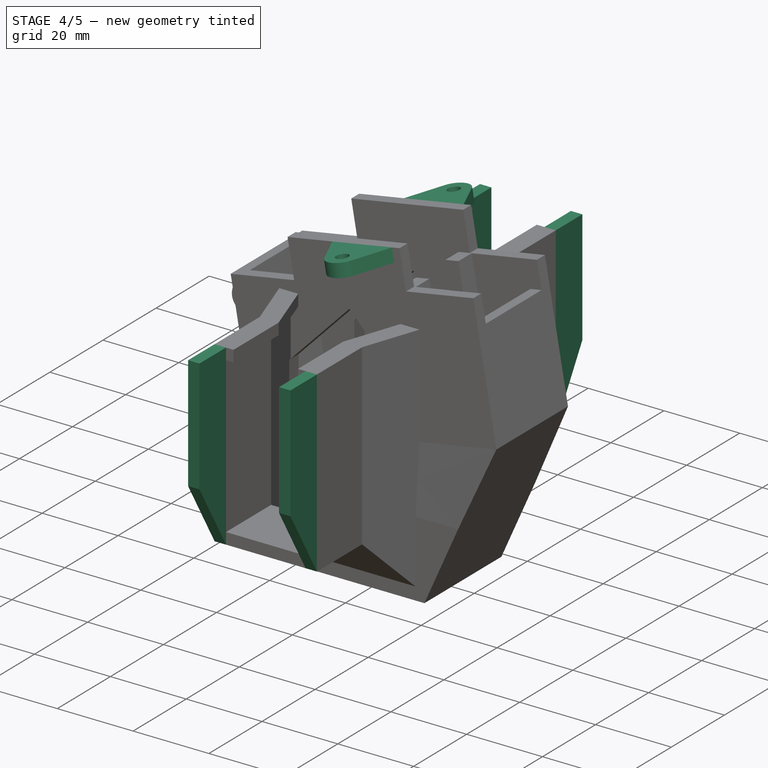
[diagram: stage 4 of 5 — iso view after this stage's code; geometry added in this stage tinted green]
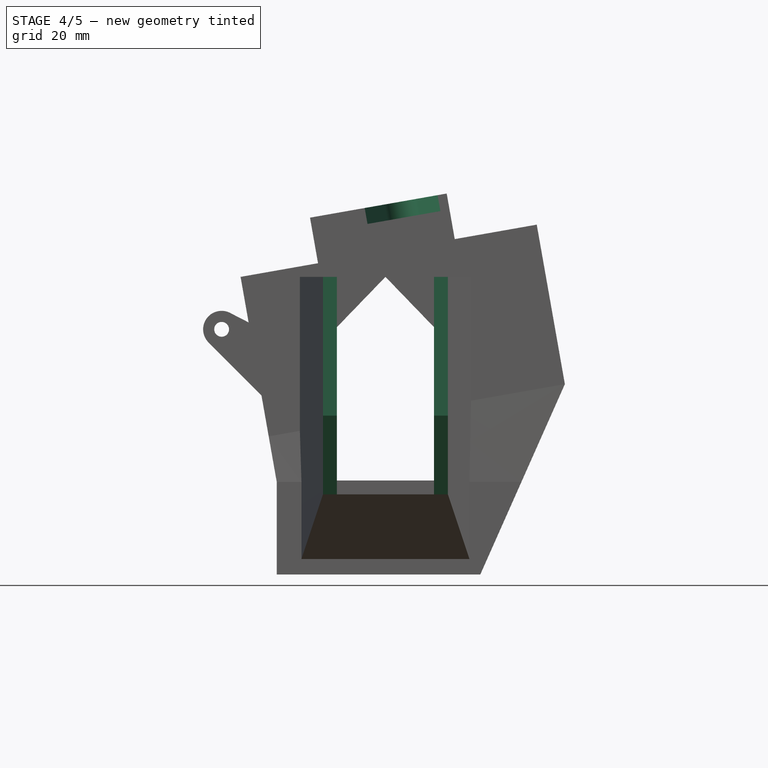
[diagram: stage 4 of 5 — front view after this stage's code; geometry added in this stage tinted green]
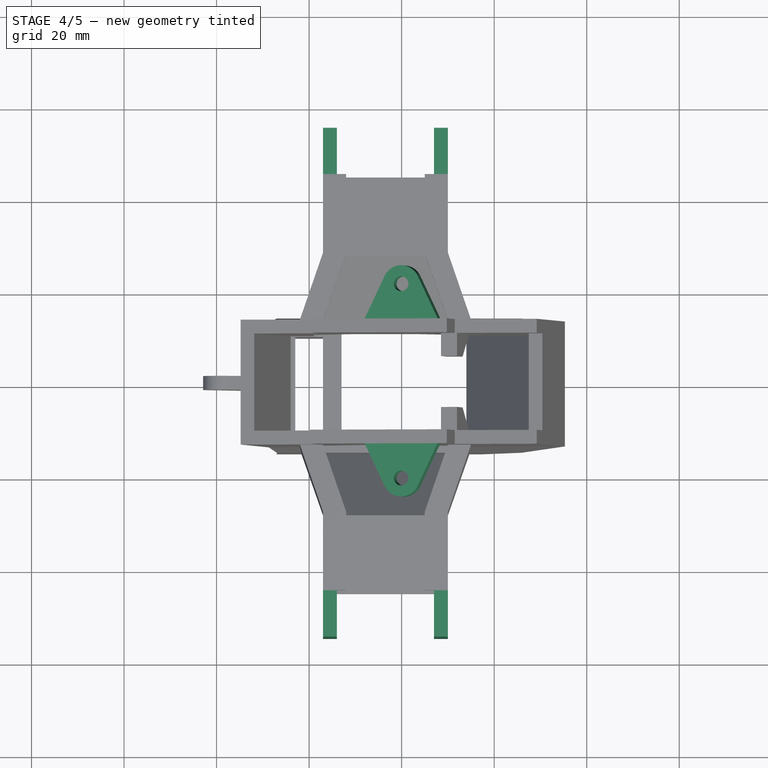
[diagram: stage 4 of 5 — top view after this stage's code; geometry added in this stage tinted green]
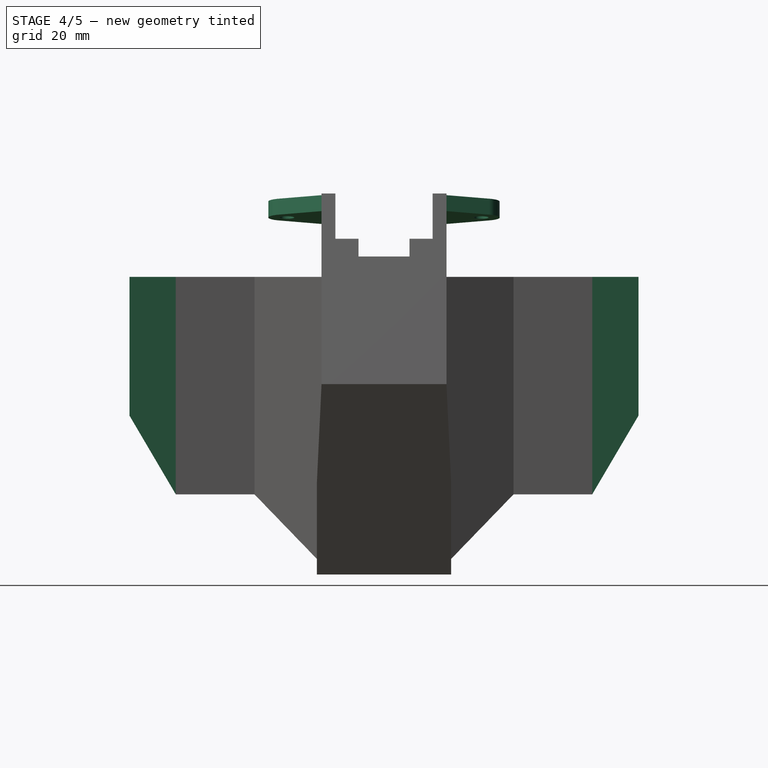
[diagram: stage 4 of 5 — right view after this stage's code; geometry added in this stage tinted green]
FEATURE [Sketcher::SketchObject] Sketch015
  AttachmentOffset = pos=(0,0,-10) rot=(0,0,1;0rad)
  FullyConstrained = true
  MapMode = 5
  Placement = pos=(-16.5506,-1.68e-14,74.1644) rot=(0.705758,0.705758,0.061746;3.01826rad)
  Support = -> [DatumPlane002]
  sketch-geometry (10):
    g0: LineSegment StartX=-22.7192 StartY=33.3883 StartZ=0 EndX=-13.5 EndY=29 EndZ=0
    g1: LineSegment StartX=-13.5 StartY=29 StartZ=0 EndX=-13.5 EndY=45 EndZ=0
    g2: LineSegment StartX=-13.5 StartY=45 StartZ=0 EndX=-22.7192 EndY=40.6117 EndZ=0
    g3: LineSegment StartX=13.5 StartY=29 StartZ=0 EndX=13.5 EndY=45 EndZ=0
    g4: LineSegment StartX=13.5 StartY=45 StartZ=0 EndX=22.7192 EndY=40.6117 EndZ=0
    g5: LineSegment StartX=13.5 StartY=29 StartZ=0 EndX=22.7192 EndY=33.3883 EndZ=0
    g6: ArcOfCircle CenterX=-21 CenterY=37 CenterZ=0 NormalX=0 NormalY=0 NormalZ=1 AngleXU=0 Radius=4 StartAngle=2.01506 EndAngle=4.26813
    g7: ArcOfCircle CenterX=21 CenterY=37 CenterZ=0 NormalX=0 NormalY=0 NormalZ=1 AngleXU=0 Radius=4 StartAngle=5.15665 EndAngle=7.40972
    g8: Circle CenterX=-21 CenterY=37 CenterZ=0 NormalX=0 NormalY=0 NormalZ=1 AngleXU=0 Radius=1.6
    g9: Circle CenterX=21 CenterY=37 CenterZ=0 NormalX=0 NormalY=0 NormalZ=1 AngleXU=0 Radius=1.6
  constraints (25):
    c: Coincident(g0,g1)
    c: Vertical(g1)
    c: Coincident(g1,g2)
    c: Vertical(g3)
    c: Coincident(g3,g4)
    c: Coincident(g3,g5)
    c: Vertical(g6,g0)
    c: Tangent(g6,g0) = -1.5708
    c: Tangent(g6,g2) = -1.5708
    c: DistanceY(g1,g1) = 16
    c: Horizontal(g1,g3)
    c: DistanceX(g0,g3) = 27
    c: Equal(g0,g5)
    c: Equal(g2,g4)
    c: Tangent(g7,g5) = -1.5708
    c: Tangent(g7,g4) = 1.5708
    c: DistanceX(g6,g7) = 42
    c: Radius(g6) = 4
    c: Equal(g7,g6)
    c: Symmetric(g0,g3,g-2)
    c: DistanceY(g-1,g6) = 37
    c: Equal(g8,g9)
    c: Diameter(g8) = 3.2
    c: Coincident(g8,g6)
    c: Coincident(g9,g7)
FEATURE [PartDesign::Pad] Pad003
  BaseFeature = -> Pad002
  Direction = (0.173648,2e-16,-0.984808)
  Length = 3.5
  Length2 = 10
  Profile = -> Sketch015
  ReferenceAxis = -> Sketch015 [N_Axis]
  Type = 0
FEATURE [Sketcher::SketchObject] Sketch016
  ExternalGeometry = -> [Pad003]
  FullyConstrained = true
  MapMode = 5
  Placement = pos=(3,0,0) rot=(0.57735,-0.57735,-0.57735;2.0944rad)
  Support = -> [Pad003]
  sketch-geometry (4):
    g0: LineSegment StartX=45 StartY=64.3163 StartZ=0 EndX=55 EndY=64.3163 EndZ=0
    g1: LineSegment StartX=55 StartY=64.3163 StartZ=0 EndX=55 EndY=34.3163 EndZ=0
    g2: LineSegment StartX=55 StartY=34.3163 StartZ=0 EndX=45 EndY=17.3163 EndZ=0
    g3: LineSegment StartX=45 StartY=17.3163 StartZ=0 EndX=45 EndY=64.3163 EndZ=0
  constraints (10):
    c: Coincident(g0,g1)
    c: Coincident(g1,g2)
    c: Coincident(g2,g3)
    c: Coincident(g3,g0)
    c: Horizontal(g0)
    c: Vertical(g1)
    c: Coincident(g0,g-3)
    c: DistanceX(g0,g0) = 10
    c: DistanceY(g1,g1) = 30
    c: Coincident(g2,g-3)
FEATURE [PartDesign::Pad] Pad004
  BaseFeature = -> Pad003
  Direction = (-1,0,0)
  Length = 3
  Length2 = 10
  Profile = -> Sketch016
  ReferenceAxis = -> Sketch016 [N_Axis]
  Reversed = true
  Type = 0
FEATURE [PartDesign::LinearPattern] LinearPattern
  Direction = -> Sketch016 [N_Axis]
  Length = 24
  Occurrences = 2
  Reversed = true
FEATURE [PartDesign::Mirrored] Mirrored
  MirrorPlane = -> XZ_Plane
FEATURE [PartDesign::MultiTransform] MultiTransform
  BaseFeature = -> Pad004
  Originals = -> [Pad004]
  Transformations = -> [LinearPattern,Mirrored]
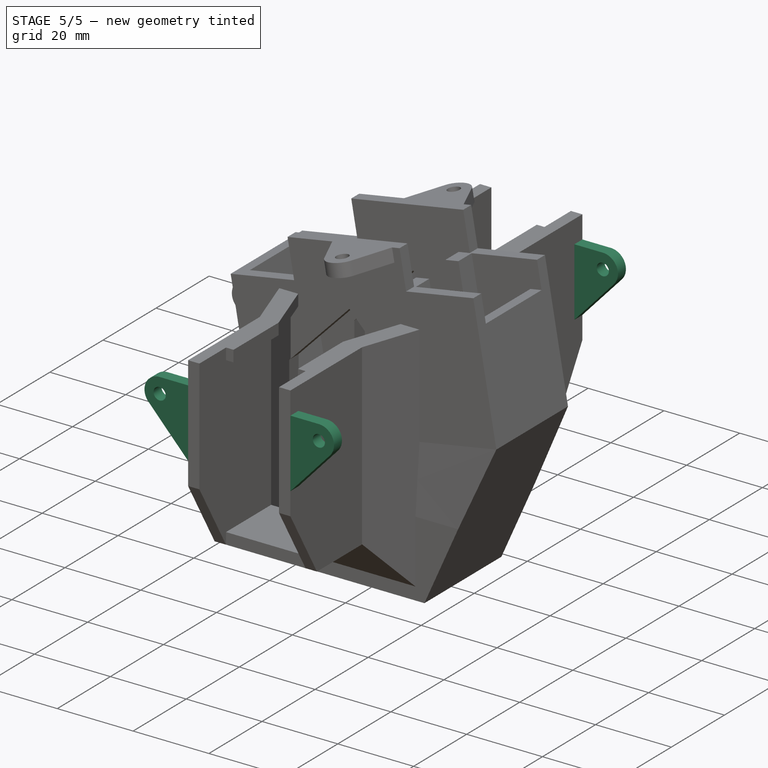
[diagram: stage 5 of 5 — iso view after this stage's code; geometry added in this stage tinted green]
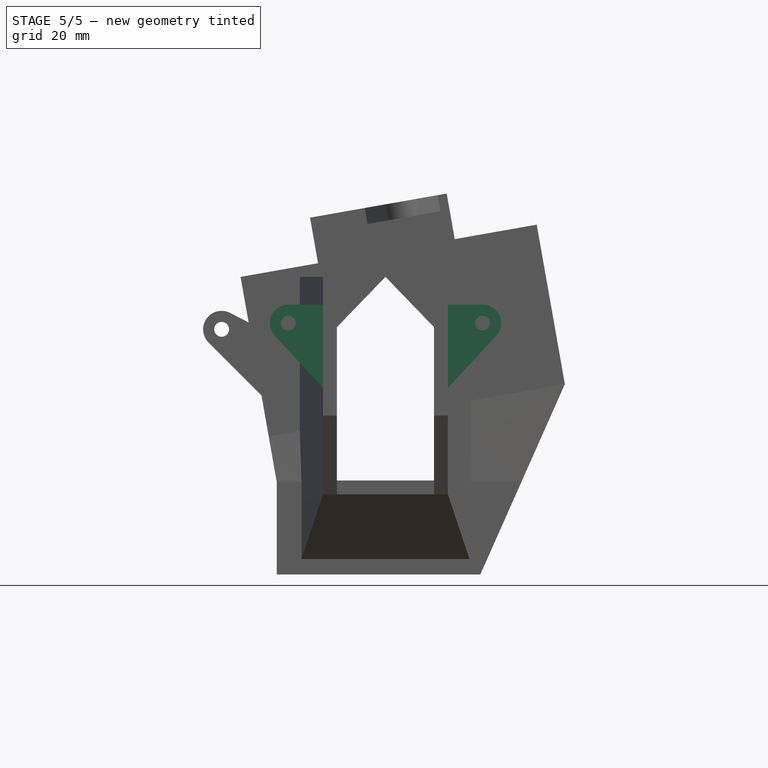
[diagram: stage 5 of 5 — front view after this stage's code; geometry added in this stage tinted green]
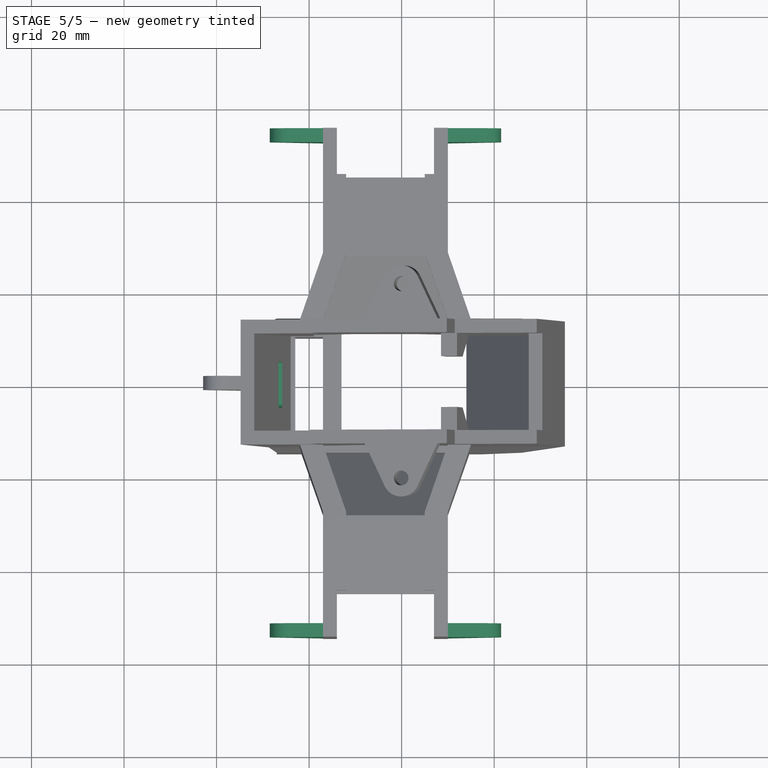
[diagram: stage 5 of 5 — top view after this stage's code; geometry added in this stage tinted green]
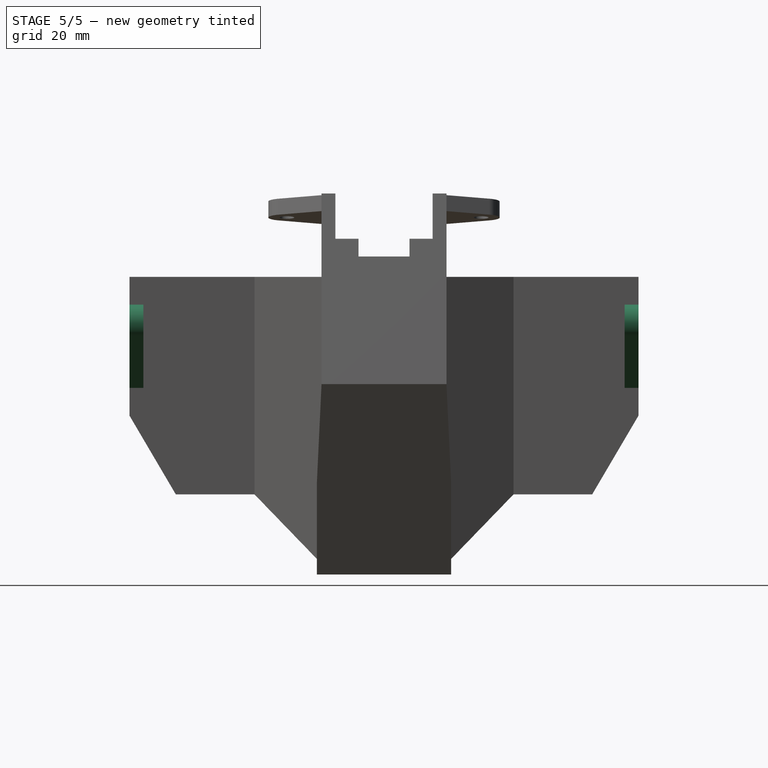
[diagram: stage 5 of 5 — right view after this stage's code; geometry added in this stage tinted green]
FEATURE [Sketcher::SketchObject] Sketch017
  AttachmentOffset = pos=(0,0,55) rot=(0,0,1;0rad)
  ExternalGeometry = -> [MultiTransform]
  FullyConstrained = true
  MapMode = 5
  Placement = pos=(0,-55,-1.22e-14) rot=(1,0,0;1.5708rad)
  Support = -> [XZ_Plane]
  sketch-geometry (10):
    g0: LineSegment StartX=-7.43655 StartY=51.6003 StartZ=0 EndX=3 EndY=40.3163 EndZ=0
    g1: LineSegment StartX=3 StartY=40.3163 StartZ=0 EndX=3 EndY=58.3163 EndZ=0
    g2: LineSegment StartX=3 StartY=58.3163 StartZ=0 EndX=-4.5 EndY=58.3163 EndZ=0
    g3: LineSegment StartX=40.4365 StartY=51.6003 StartZ=0 EndX=30 EndY=40.3163 EndZ=0
    g4: LineSegment StartX=30 StartY=40.3163 StartZ=0 EndX=30 EndY=58.3163 EndZ=0
    g5: LineSegment StartX=30 StartY=58.3163 StartZ=0 EndX=37.5 EndY=58.3163 EndZ=0
    g6: ArcOfCircle CenterX=-4.5 CenterY=54.3163 CenterZ=0 NormalX=0 NormalY=0 NormalZ=1 AngleXU=0 Radius=4 StartAngle=1.5708 EndAngle=3.88799
    g7: ArcOfCircle CenterX=37.5 CenterY=54.3163 CenterZ=0 NormalX=0 NormalY=0 NormalZ=1 AngleXU=0 Radius=4 StartAngle=5.53678 EndAngle=7.85398
    g8: Circle CenterX=-4.5 CenterY=54.3163 CenterZ=0 NormalX=0 NormalY=0 NormalZ=1 AngleXU=0 Radius=1.6
    g9: Circle CenterX=37.5 CenterY=54.3163 CenterZ=0 NormalX=0 NormalY=0 NormalZ=1 AngleXU=0 Radius=1.6
  constraints (27):
    c: Coincident(g0,g1)
    c: Vertical(g1)
    c: Coincident(g3,g4)
    c: Horizontal(g1,g4)
    c: DistanceX(g1,g4) = 27
    c: Horizontal(g2)
    c: Horizontal(g5)
    c: Horizontal(g0,g3)
    c: Vertical(g4)
    c: DistanceY(g1,g1) = 18
    c: Tangent(g6,g0) = -1.5708
    c: Tangent(g6,g2) = -1.5708
    c: Radius(g6) = 4
    c: Equal(g2,g5)
    c: Tangent(g7,g5) = 1.5708
    c: Tangent(g7,g3) = 1.5708
    c: DistanceX(g6,g7) = 42
    c: Equal(g3,g0)
    c: Equal(g8,g9)
    c: Diameter(g8) = 3.2
    c: Coincident(g8,g6)
    c: Coincident(g9,g7)
    c: PointOnObject(g5,g4)
    c: Equal(g7,g6)
    c: Coincident(g1,g2)
    c: PointOnObject(g1,g-3)
    c: DistanceY(g6,g-3) = 10
FEATURE [PartDesign::Pad] Pad005
  BaseFeature = -> MultiTransform
  Direction = (0,-1,-2e-16)
  Length = 3
  Length2 = 10
  Profile = -> Sketch017
  ReferenceAxis = -> Sketch017 [N_Axis]
  Reversed = true
  Type = 0
FEATURE [PartDesign::Mirrored] Mirrored002
  BaseFeature = -> Pad005
  MirrorPlane = -> XZ_Plane
  Originals = -> [Pad005]
FEATURE [Sketcher::SketchObject] Sketch018
  ExternalGeometry = -> [Mirrored002]
  FullyConstrained = true
  MapMode = 5
  Placement = pos=(-3.36872,-4.5e-15,-0.593997) rot=(0.60812,-0.60812,-0.510274;2.19793rad)
  Support = -> [Mirrored002]
  sketch-geometry (8):
    g0: LineSegment StartX=-4 StartY=30.9117 StartZ=0 EndX=4 EndY=30.9117 EndZ=0
    g1: LineSegment StartX=5 StartY=31.9117 StartZ=0 EndX=5 EndY=34.9117 EndZ=0
    g2: LineSegment StartX=4 StartY=35.9117 StartZ=0 EndX=-4 EndY=35.9117 EndZ=0
    g3: LineSegment StartX=-5 StartY=34.9117 StartZ=0 EndX=-5 EndY=31.9117 EndZ=0
    g4: ArcOfCircle CenterX=-4 CenterY=34.9117 CenterZ=0 NormalX=0 NormalY=0 NormalZ=1 AngleXU=0 Radius=1 StartAngle=1.5708 EndAngle=3.14159
    g5: ArcOfCircle CenterX=-4 CenterY=31.9117 CenterZ=0 NormalX=0 NormalY=0 NormalZ=1 AngleXU=0 Radius=1 StartAngle=3.14159 EndAngle=4.71239
    g6: ArcOfCircle CenterX=4 CenterY=34.9117 CenterZ=0 NormalX=0 NormalY=0 NormalZ=1 AngleXU=0 Radius=1 StartAngle=1.3e-15 EndAngle=1.5708
    g7: ArcOfCircle CenterX=4 CenterY=31.9117 CenterZ=0 NormalX=0 NormalY=0 NormalZ=1 AngleXU=0 Radius=1 StartAngle=4.71239 EndAngle=6.28319
  constraints (19):
    c: Horizontal(g0)
    c: Vertical(g1)
    c: Vertical(g3)
    c: Tangent(g2,g4) = -1.5708
    c: Tangent(g3,g4) = -1.5708
    c: Tangent(g0,g5) = -1.5708
    c: Tangent(g3,g5) = -1.5708
    c: Tangent(g1,g6) = -1.5708
    c: Tangent(g2,g6) = -1.5708
    c: Tangent(g0,g7) = -1.5708
    c: Tangent(g1,g7) = -1.5708
    c: DistanceX(g3,g1) = 10
    c: DistanceY(g2,g-3) = 30
    c: DistanceY(g0,g2) = 5
    c: Symmetric(g2,g2,g-2)
    c: Equal(g4,g5)
    c: Equal(g5,g6)
    c: Equal(g6,g7)
    c: Radius(g4) = 1
FEATURE [PartDesign::Pocket] Pocket003
  BaseFeature = -> Mirrored002
  Direction = (0.984808,1.3e-15,0.173648)
  Length = 8
  Length2 = 5
  Midplane = true
  Profile = -> Sketch018
  ReferenceAxis = -> Sketch018 [N_Axis]
  Type = 0
FEATURE [PartDesign::Body] Body
  Group = -> [Sketch,DatumPlane,DatumPlane001,DatumPlane002,Sketch001,Sketch002,AdditiveLoft,Sketch003,Sketch004,Sketch005,AdditiveLoft001,Sketch006,Pad,Sketch007,Sketch008,Sketch009,AdditiveLoft002,Mirrored001,Sketch010,Pocket,Sketch011,Pocket001,DatumPlane003,Sketch012,Pad001,Sketch013,Pocket002,Sketch014,Pad002,Sketch015,Pad003,Sketch016,Pad004,MultiTransform,LinearPattern,Mirrored,Sketch017,Pad005,+3 more]
  Origin = -> Origin
  Tip = -> Pocket003
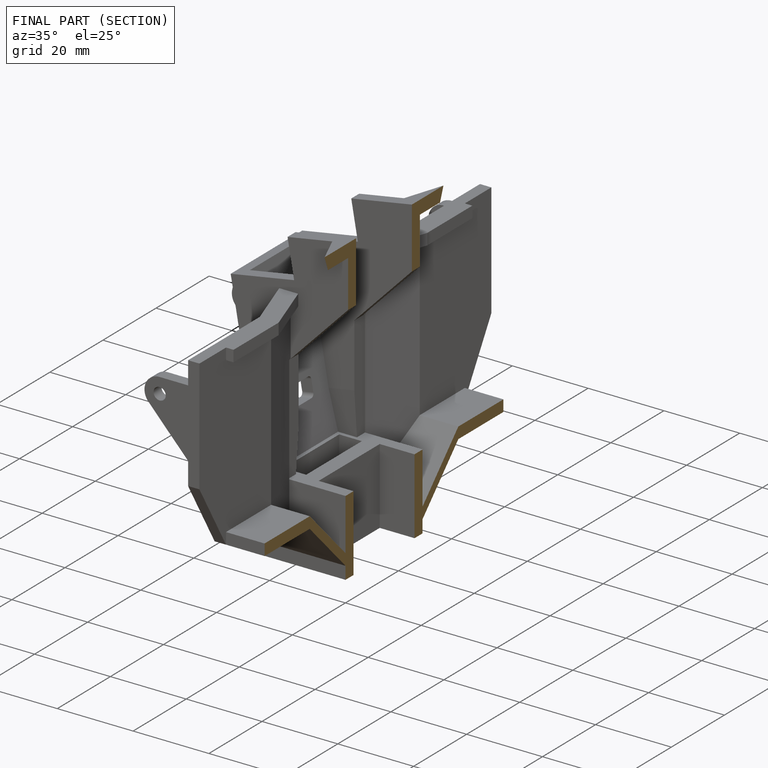
[diagram: finished part — half-section view (interior)]
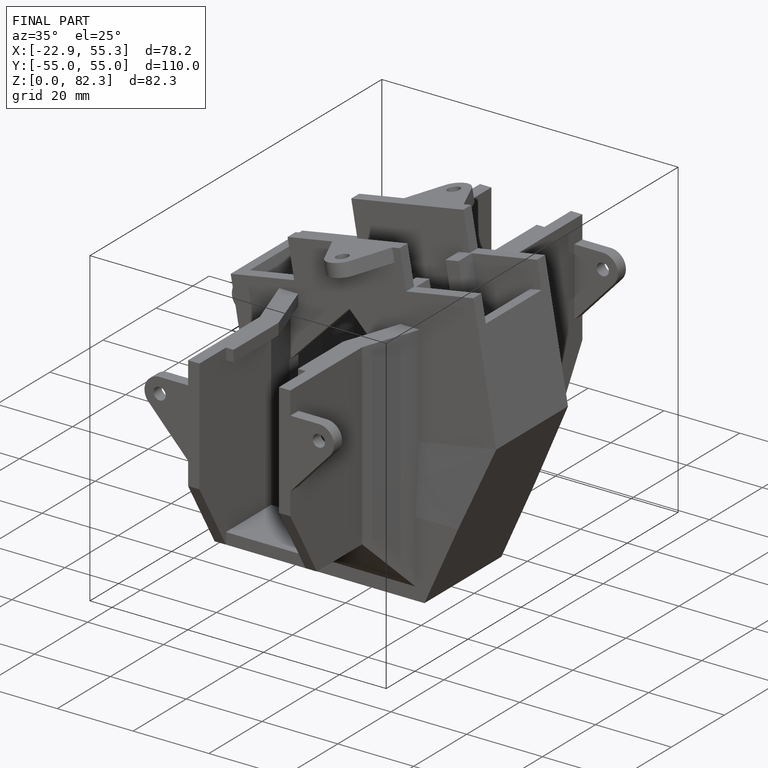
[diagram: finished part — iso view with bounding-box wireframe]
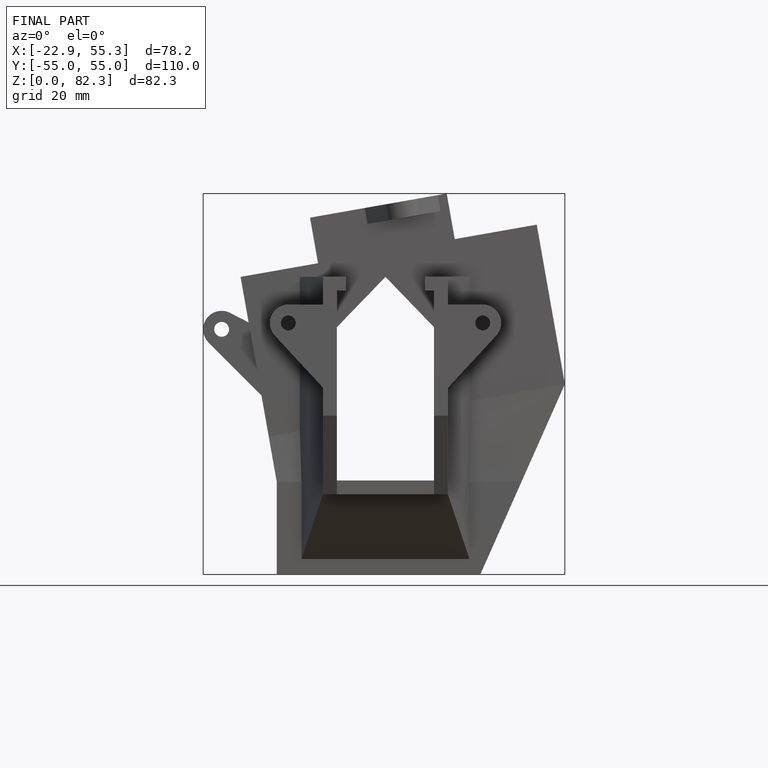
[diagram: finished part — front view with bounding-box wireframe]
